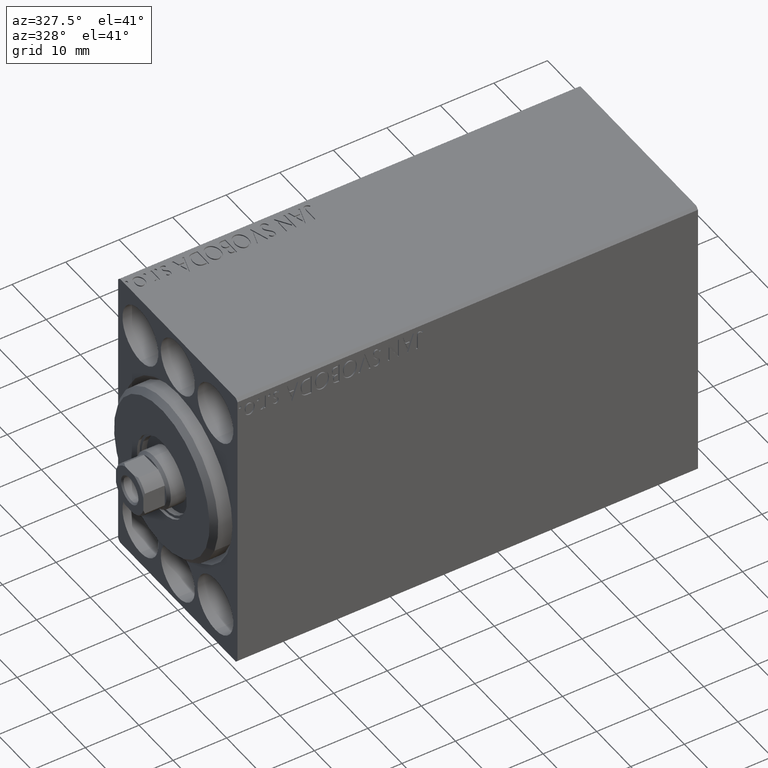
[diagram: clean part render]
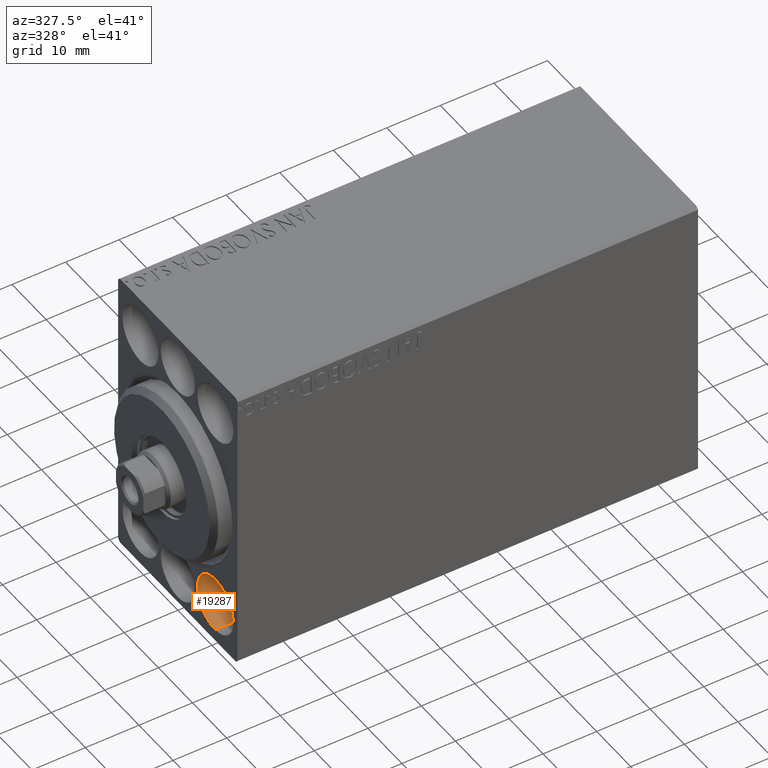
[diagram: same view with one face highlighted and labeled with its STEP entity id]
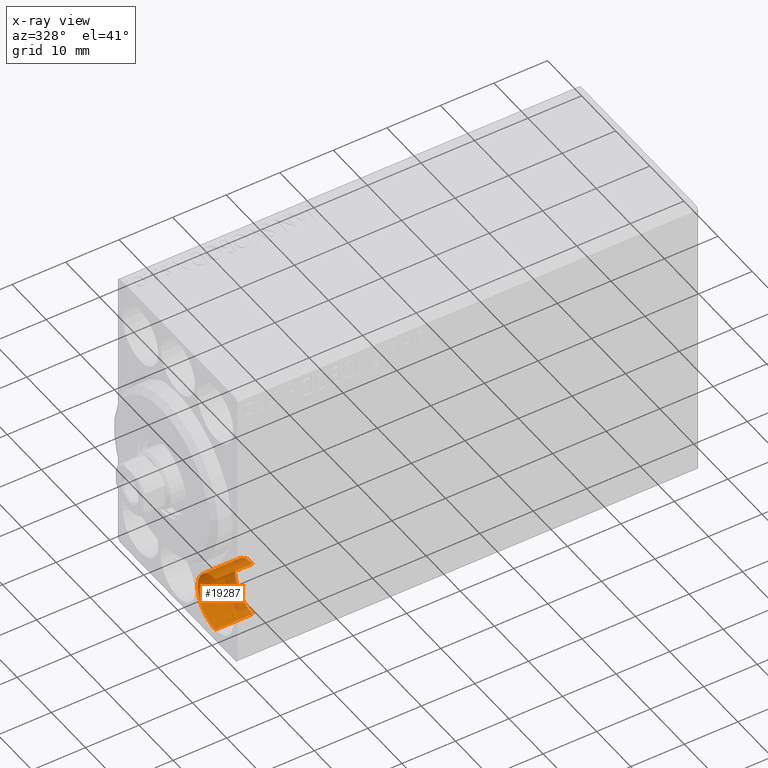
[diagram: x-ray of the same camera — body ghosted, the highlighted face saturated]
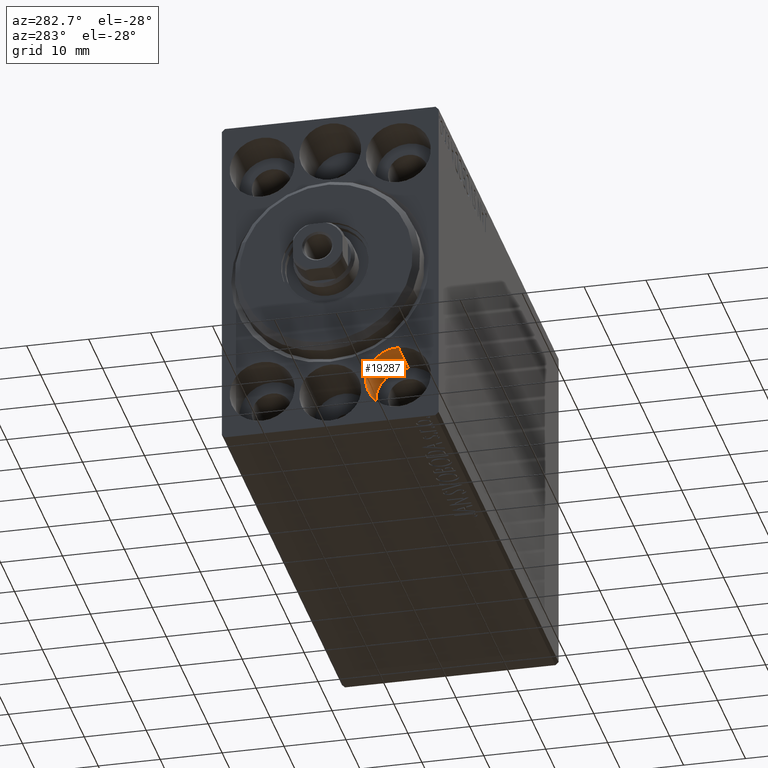
[diagram: same view with one face highlighted and labeled with its STEP entity id]
A machine part, auxiliary view. The second image highlights one B-rep face of the part: STEP entity #19287.
The next image is the same camera in x-ray: the body ghosted, the highlighted face saturated — about 19% of this face is hidden behind the body in this view.
A second angle (auxiliary view) of the same face is appended — the face is thin or edge-on in the first view.
In plain terms, the highlighted cylindrical surface (edge-blend (fillet) strip) has radius 5.25 mm, axis along (-1, -0, -0).
Its self-contained STEP definition (entity closure, byte-faithful):
#2001 = EDGE_CURVE ( 'NONE', #39527, #19297, #14288, .T. ) ;
#3547 = DIRECTION ( 'NONE',  ( -1.000000000000000000, -0.000000000000000000, -0.000000000000000000 ) ) ;
#4259 = LINE ( 'NONE', #31261, #35761 ) ;
#5091 = VERTEX_POINT ( 'NONE', #8503 ) ;
#5788 = CARTESIAN_POINT ( 'NONE',  ( 7.000000000000000000, -11.00000000000000355, -25.25000000000000000 ) ) ;
#6443 = CARTESIAN_POINT ( 'NONE',  ( 7.000000000000000000, -11.00000000000000355, -20.00000000000000000 ) ) ;
#7189 = AXIS2_PLACEMENT_3D ( 'NONE', #31941, #42153, #11817 ) ;
#8035 = AXIS2_PLACEMENT_3D ( 'NONE', #20410, #37455, #33900 ) ;
#8251 = DIRECTION ( 'NONE',  ( -1.000000000000000000, -0.000000000000000000, -0.000000000000000000 ) ) ;
#8503 = CARTESIAN_POINT ( 'NONE',  ( 7.000000000000000000, -11.00000000000000355, -14.75000000000000000 ) ) ;
#8912 = CARTESIAN_POINT ( 'NONE',  ( 7.000000000000000000, -11.00000000000000355, -25.25000000000000000 ) ) ;
#11817 = DIRECTION ( 'NONE',  ( 0.000000000000000000, 0.000000000000000000, 1.000000000000000000 ) ) ;
#12228 = DIRECTION ( 'NONE',  ( -1.000000000000000000, -0.000000000000000000, -0.000000000000000000 ) ) ;
#13762 = EDGE_LOOP ( 'NONE', ( #31323, #20297, #36916, #17217 ) ) ;
#13895 = AXIS2_PLACEMENT_3D ( 'NONE', #6443, #3547, #26390 ) ;
#14288 = CIRCLE ( 'NONE', #7189, 5.250000000000000888 ) ;
#16354 = VECTOR ( 'NONE', #12228, 1000.000000000000000 ) ;
#16596 = EDGE_CURVE ( 'NONE', #5091, #39527, #4259, .T. ) ;
#17068 = CARTESIAN_POINT ( 'NONE',  ( 0.000000000000000000, -11.00000000000000355, -25.25000000000000000 ) ) ;
#17217 = ORIENTED_EDGE ( 'NONE', *, *, #2001, .T. ) ;
#19287 = ADVANCED_FACE ( 'NONE', ( #20401 ), #40125, .F. ) ;
#19297 = VERTEX_POINT ( 'NONE', #17068 ) ;
#20297 = ORIENTED_EDGE ( 'NONE', *, *, #40515, .F. ) ;
#20401 = FACE_OUTER_BOUND ( 'NONE', #13762, .T. ) ;
#20410 = CARTESIAN_POINT ( 'NONE',  ( 7.000000000000000000, -11.00000000000000355, -20.00000000000000000 ) ) ;
#22417 = CARTESIAN_POINT ( 'NONE',  ( 0.000000000000000000, -11.00000000000000355, -14.75000000000000000 ) ) ;
#22420 = LINE ( 'NONE', #5788, #16354 ) ;
#26390 = DIRECTION ( 'NONE',  ( 0.000000000000000000, 0.000000000000000000, 1.000000000000000000 ) ) ;
#31261 = CARTESIAN_POINT ( 'NONE',  ( 7.000000000000000000, -11.00000000000000355, -14.75000000000000000 ) ) ;
#31323 = ORIENTED_EDGE ( 'NONE', *, *, #37199, .F. ) ;
#31941 = CARTESIAN_POINT ( 'NONE',  ( 0.000000000000000000, -11.00000000000000355, -20.00000000000000000 ) ) ;
#33900 = DIRECTION ( 'NONE',  ( 0.000000000000000000, 0.000000000000000000, 1.000000000000000000 ) ) ;
#35606 = CIRCLE ( 'NONE', #8035, 5.250000000000000888 ) ;
#35761 = VECTOR ( 'NONE', #8251, 1000.000000000000000 ) ;
#36916 = ORIENTED_EDGE ( 'NONE', *, *, #16596, .T. ) ;
#37199 = EDGE_CURVE ( 'NONE', #39519, #19297, #22420, .T. ) ;
#37455 = DIRECTION ( 'NONE',  ( -1.000000000000000000, 0.000000000000000000, 0.000000000000000000 ) ) ;
#39519 = VERTEX_POINT ( 'NONE', #8912 ) ;
#39527 = VERTEX_POINT ( 'NONE', #22417 ) ;
#40125 = CYLINDRICAL_SURFACE ( 'NONE', #13895, 5.250000000000000888 ) ;
#40515 = EDGE_CURVE ( 'NONE', #5091, #39519, #35606, .T. ) ;
#42153 = DIRECTION ( 'NONE',  ( -1.000000000000000000, 0.000000000000000000, 0.000000000000000000 ) ) ;